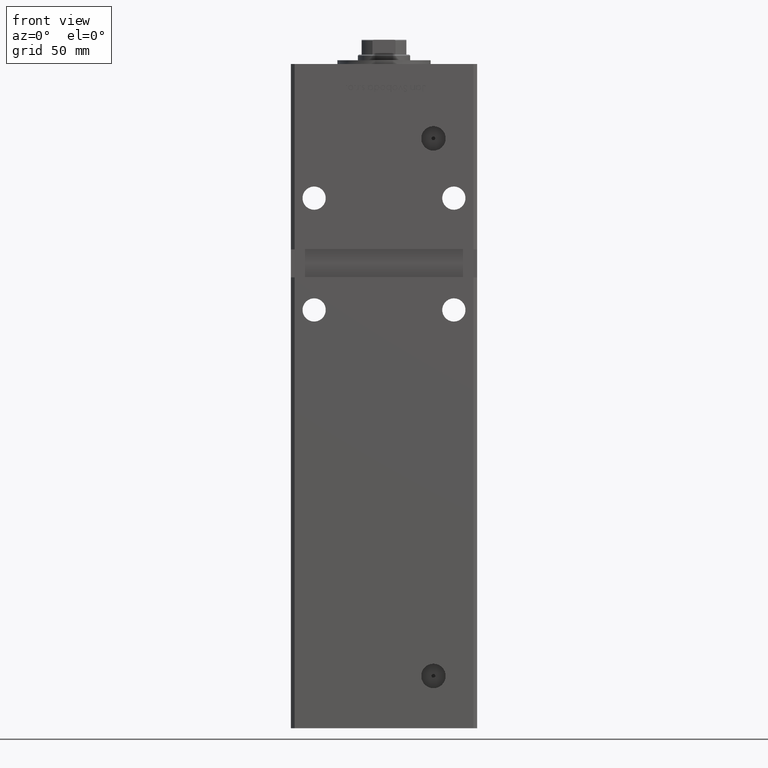
[diagram: clean part render]
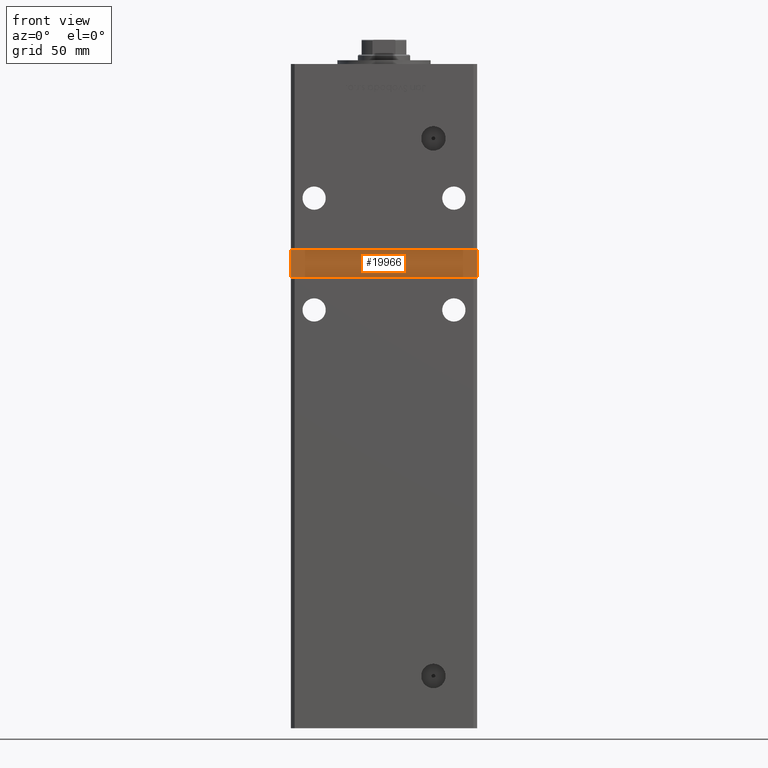
[diagram: same view with one face highlighted and labeled with its STEP entity id]
A machine part, front view. The second image highlights one B-rep face of the part: STEP entity #19966.
In plain terms, the highlighted planar face has unit normal (0, -1, 0).
Its self-contained STEP definition (entity closure, byte-faithful):
#3450 = DIRECTION ( 'NONE',  ( 0.000000000000000000, 0.000000000000000000, -1.000000000000000000 ) ) ;
#3617 = AXIS2_PLACEMENT_3D ( 'NONE', #33365, #8636, #12939 ) ;
#4114 = VERTEX_POINT ( 'NONE', #48921 ) ;
#5276 = VERTEX_POINT ( 'NONE', #32805 ) ;
#5631 = ORIENTED_EDGE ( 'NONE', *, *, #43663, .T. ) ;
#6835 = VERTEX_POINT ( 'NONE', #38174 ) ;
#7745 = CARTESIAN_POINT ( 'NONE',  ( -49.99999999999998579, -38.50000000000000000, 238.0000000000000284 ) ) ;
#8370 = PLANE ( 'NONE',  #3617 ) ;
#8584 = DIRECTION ( 'NONE',  ( -1.000000000000000000, -0.000000000000000000, -0.000000000000000000 ) ) ;
#8636 = DIRECTION ( 'NONE',  ( 0.000000000000000000, -1.000000000000000000, 0.000000000000000000 ) ) ;
#11980 = EDGE_CURVE ( 'NONE', #21378, #6835, #29271, .T. ) ;
#12939 = DIRECTION ( 'NONE',  ( 0.000000000000000000, 0.000000000000000000, -1.000000000000000000 ) ) ;
#15130 = LINE ( 'NONE', #39599, #22588 ) ;
#19216 = ORIENTED_EDGE ( 'NONE', *, *, #36334, .T. ) ;
#19966 = ADVANCED_FACE ( 'NONE', ( #49225 ), #8370, .T. ) ;
#21378 = VERTEX_POINT ( 'NONE', #27215 ) ;
#22588 = VECTOR ( 'NONE', #34501, 1000.000000000000000 ) ;
#24258 = EDGE_LOOP ( 'NONE', ( #5631, #41510, #36134, #19216 ) ) ;
#27215 = CARTESIAN_POINT ( 'NONE',  ( 50.00000000000000000, -38.50000000000000000, 238.0000000000000284 ) ) ;
#27386 = VECTOR ( 'NONE', #8584, 1000.000000000000000 ) ;
#29271 = LINE ( 'NONE', #33569, #27386 ) ;
#31714 = LINE ( 'NONE', #44073, #41749 ) ;
#32805 = CARTESIAN_POINT ( 'NONE',  ( -49.99999999999998579, -38.50000000000000000, 223.0000000000000000 ) ) ;
#33365 = CARTESIAN_POINT ( 'NONE',  ( 0.000000000000000000, -38.50000000000000000, 0.000000000000000000 ) ) ;
#33569 = CARTESIAN_POINT ( 'NONE',  ( -49.99999999999998579, -38.50000000000000000, 238.0000000000000284 ) ) ;
#34136 = VECTOR ( 'NONE', #3450, 1000.000000000000000 ) ;
#34501 = DIRECTION ( 'NONE',  ( 1.000000000000000000, 0.000000000000000000, 0.000000000000000000 ) ) ;
#36134 = ORIENTED_EDGE ( 'NONE', *, *, #53037, .T. ) ;
#36225 = LINE ( 'NONE', #7745, #34136 ) ;
#36334 = EDGE_CURVE ( 'NONE', #5276, #4114, #15130, .T. ) ;
#38174 = CARTESIAN_POINT ( 'NONE',  ( -49.99999999999998579, -38.50000000000000000, 238.0000000000000284 ) ) ;
#39599 = CARTESIAN_POINT ( 'NONE',  ( -49.99999999999998579, -38.50000000000000000, 223.0000000000000000 ) ) ;
#41510 = ORIENTED_EDGE ( 'NONE', *, *, #11980, .T. ) ;
#41749 = VECTOR ( 'NONE', #52669, 1000.000000000000000 ) ;
#43663 = EDGE_CURVE ( 'NONE', #4114, #21378, #31714, .T. ) ;
#44073 = CARTESIAN_POINT ( 'NONE',  ( 50.00000000000000000, -38.50000000000000000, 238.0000000000000284 ) ) ;
#48921 = CARTESIAN_POINT ( 'NONE',  ( 49.99999999999998579, -38.49999999999999289, 223.0000000000000000 ) ) ;
#49225 = FACE_OUTER_BOUND ( 'NONE', #24258, .T. ) ;
#52669 = DIRECTION ( 'NONE',  ( 4.625929269271481969E-16, -0.000000000000000000, 1.000000000000000000 ) ) ;
#53037 = EDGE_CURVE ( 'NONE', #6835, #5276, #36225, .T. ) ;